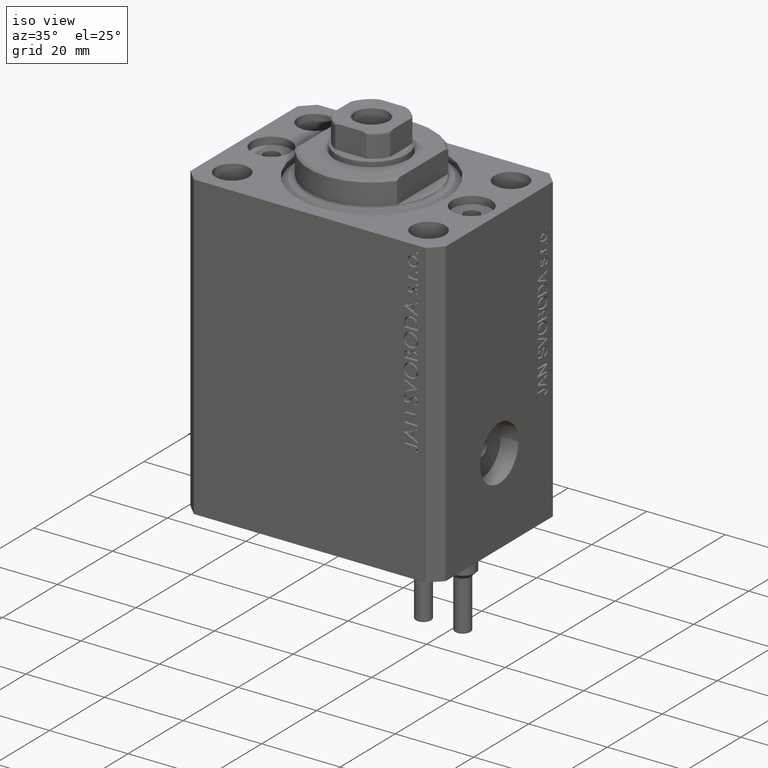
[diagram: clean part render]
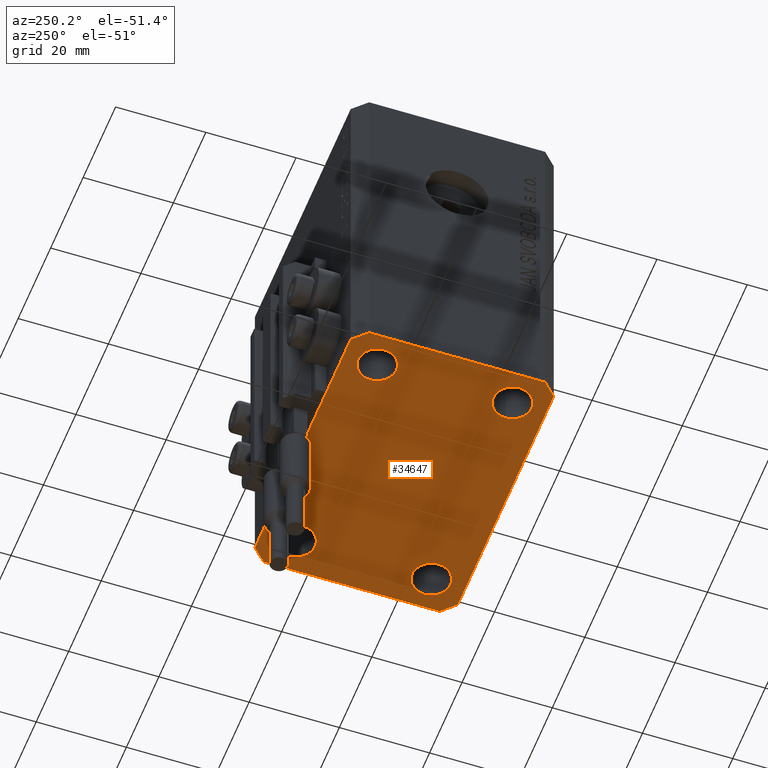
[diagram: tour spotlight — one face highlighted and labeled with its STEP entity id]
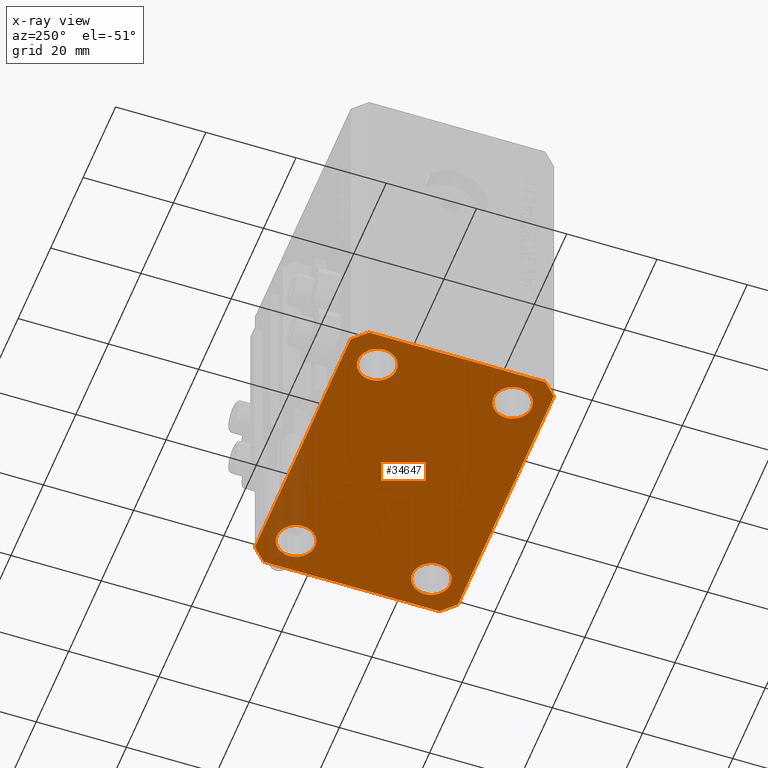
[diagram: x-ray of the same camera — body ghosted, this tour face saturated]
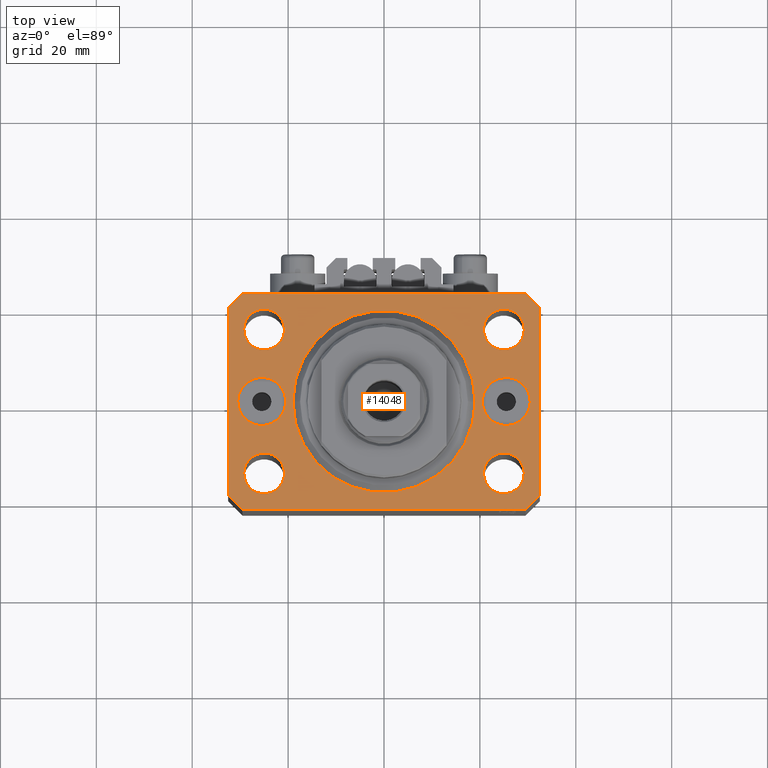
[diagram: tour spotlight — one face highlighted and labeled with its STEP entity id]
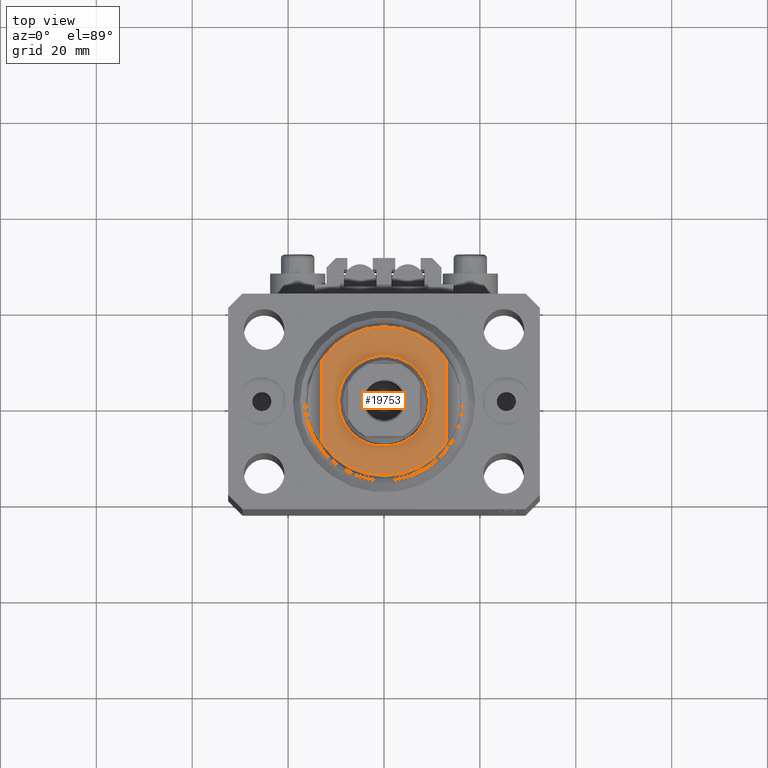
[diagram: tour spotlight — one face highlighted and labeled with its STEP entity id]
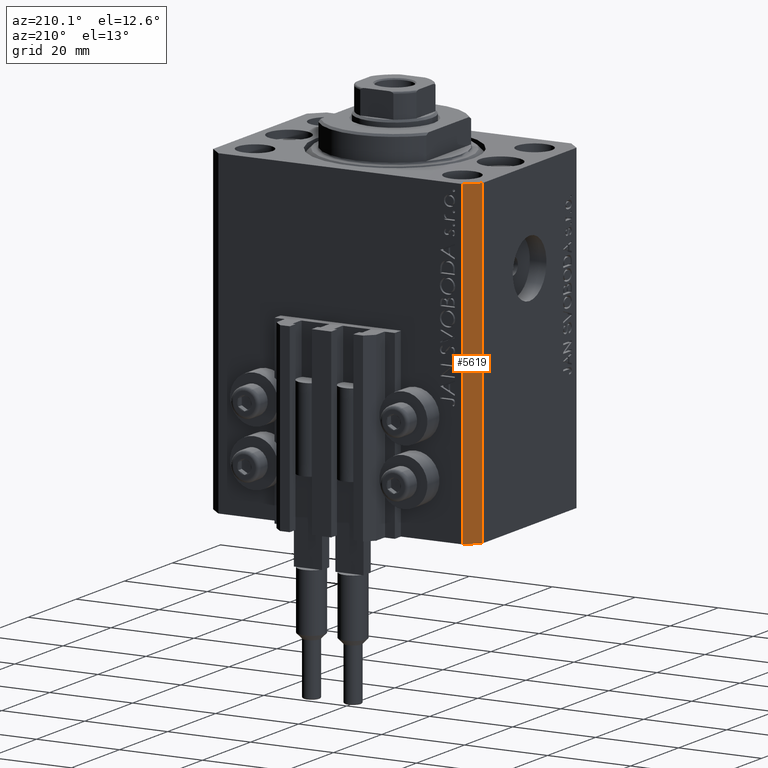
[diagram: tour spotlight — one face highlighted and labeled with its STEP entity id]
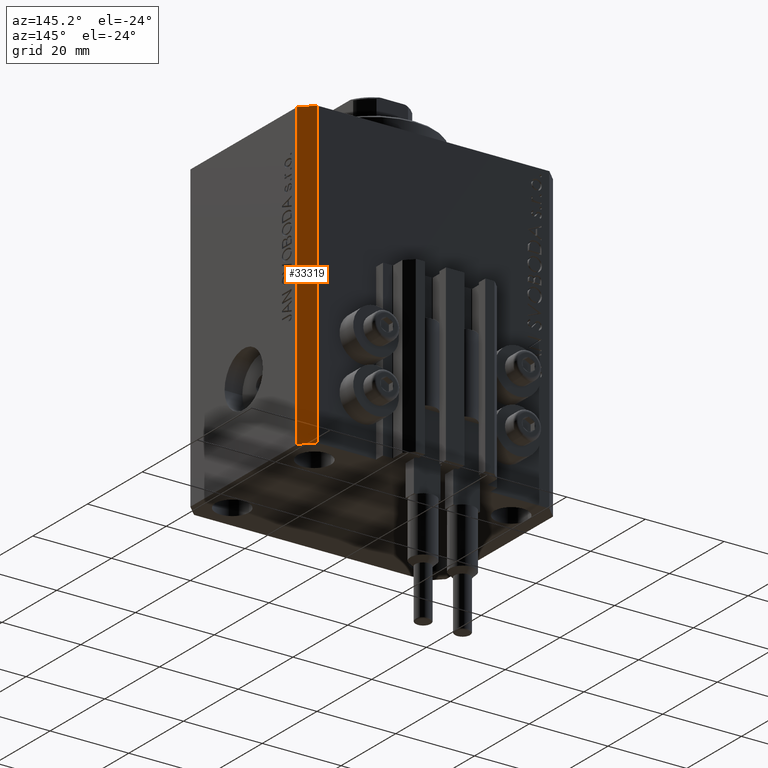
[diagram: tour spotlight — one face highlighted and labeled with its STEP entity id]
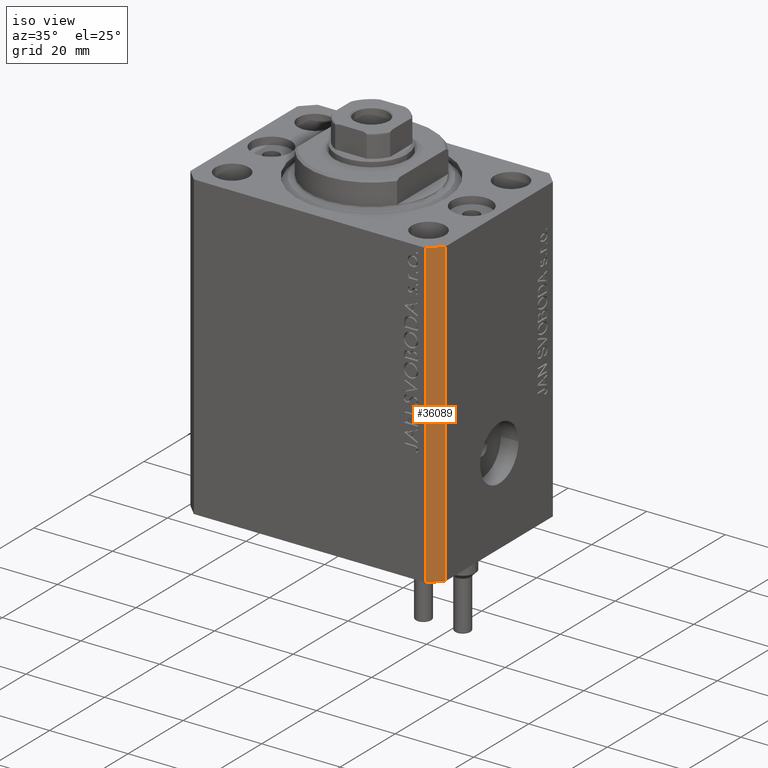
[diagram: tour spotlight — one face highlighted and labeled with its STEP entity id]
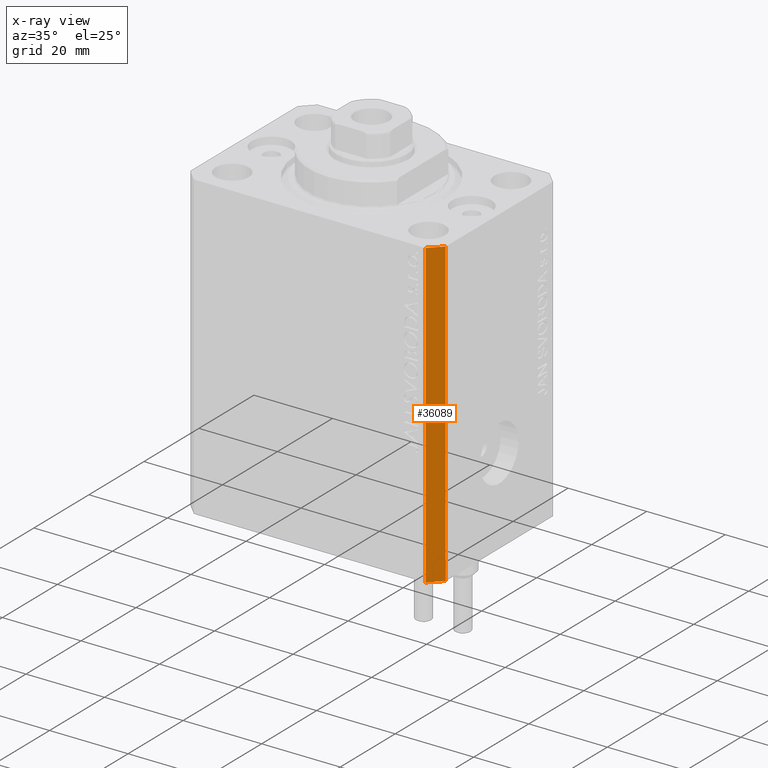
[diagram: x-ray of the same camera — body ghosted, this tour face saturated]
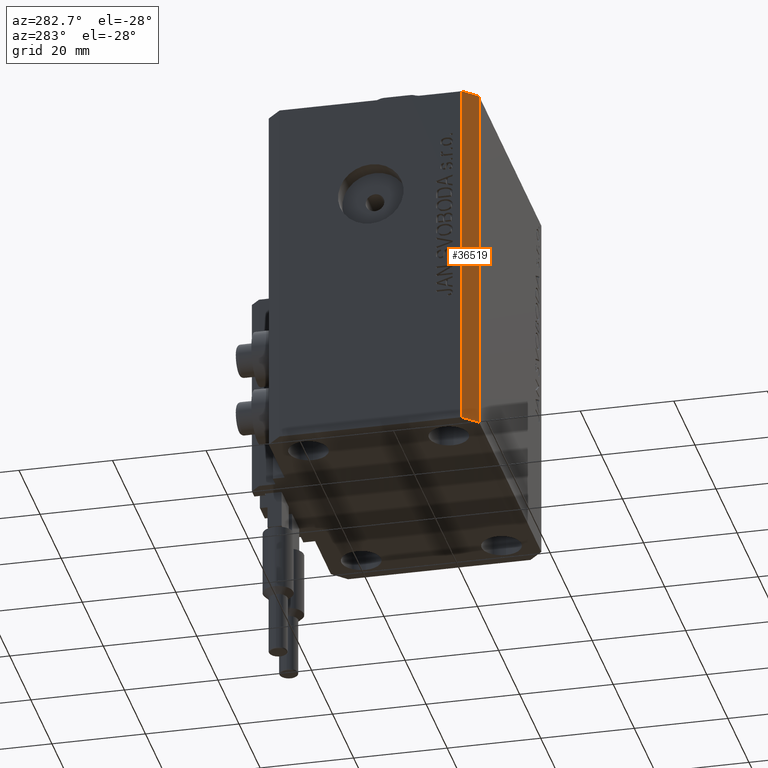
[diagram: tour spotlight — one face highlighted and labeled with its STEP entity id]
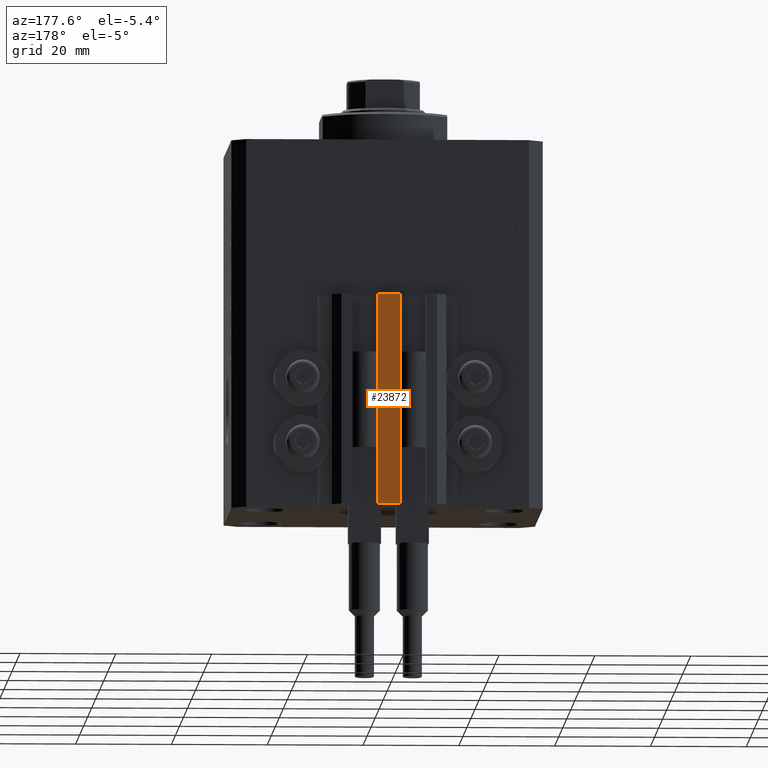
[diagram: tour spotlight — one face highlighted and labeled with its STEP entity id]
A machine part: a face-by-face anatomy tour. The part has 1086 B-rep faces; the first image is the clean iso view, then the 8 largest visible faces are spotlighted one at a time (largest first), each with its STEP entity span.

Face 1 — auxiliary view, entity #34647. An x-ray twin of the same camera follows (body ghosted, this face saturated) — the face is partly hidden behind the body. In plain terms, the highlighted planar face has unit normal (0, 0, 1).
Definition (entity closure, byte-faithful):
#201 = CARTESIAN_POINT ( 'NONE',  ( -29.25000000004036593, -15.00000000000000355, -77.00000000000000000 ) ) ;
#227 = ORIENTED_EDGE ( 'NONE', *, *, #7958, .F. ) ;
#371 = CARTESIAN_POINT ( 'NONE',  ( -20.74999999997862687, 14.99999999999999645, -77.00000000000000000 ) ) ;
#775 = ORIENTED_EDGE ( 'NONE', *, *, #36419, .F. ) ;
#1052 = EDGE_CURVE ( 'NONE', #1258, #2521, #29757, .T. ) ;
#1258 = VERTEX_POINT ( 'NONE', #38722 ) ;
#1757 = EDGE_CURVE ( 'NONE', #3837, #29228, #36660, .T. ) ;
#1959 = AXIS2_PLACEMENT_3D ( 'NONE', #26564, #15388, #8108 ) ;
#2364 = CARTESIAN_POINT ( 'NONE',  ( 29.49999999999707967, 22.49999999999952038, -77.00000000000000000 ) ) ;
#2521 = VERTEX_POINT ( 'NONE', #10734 ) ;
#2629 = AXIS2_PLACEMENT_3D ( 'NONE', #21576, #43655, #43900 ) ;
#2710 = ORIENTED_EDGE ( 'NONE', *, *, #14368, .F. ) ;
#3837 = VERTEX_POINT ( 'NONE', #47033 ) ;
#3840 = CARTESIAN_POINT ( 'NONE',  ( 32.49999999999702993, 19.49999999999945999, -77.00000000000000000 ) ) ;
#3867 = DIRECTION ( 'NONE',  ( 1.000000000000000000, 0.000000000000000000, 0.000000000000000000 ) ) ;
#4780 = EDGE_LOOP ( 'NONE', ( #18419, #37751 ) ) ;
#4862 = DIRECTION ( 'NONE',  ( -0.000000000000000000, -0.000000000000000000, -1.000000000000000000 ) ) ;
#5266 = CARTESIAN_POINT ( 'NONE',  ( -24.99999999999999289, -15.00000000000000355, -77.00000000000000000 ) ) ;
#5289 = CARTESIAN_POINT ( 'NONE',  ( -20.74999999995962341, -15.00000000000000355, -77.00000000000000000 ) ) ;
#5981 = CARTESIAN_POINT ( 'NONE',  ( 32.49999999999702993, 19.49999999999945999, -77.00000000000000000 ) ) ;
#6228 = ORIENTED_EDGE ( 'NONE', *, *, #30761, .F. ) ;
#6427 = VERTEX_POINT ( 'NONE', #43803 ) ;
#6547 = VECTOR ( 'NONE', #20083, 1000.000000000000000 ) ;
#7815 = VERTEX_POINT ( 'NONE', #3840 ) ;
#7958 = EDGE_CURVE ( 'NONE', #28224, #7815, #47263, .T. ) ;
#8108 = DIRECTION ( 'NONE',  ( 1.000000000000000000, 0.000000000000000000, 0.000000000000000000 ) ) ;
#8181 = FACE_BOUND ( 'NONE', #20422, .T. ) ;
#8353 = DIRECTION ( 'NONE',  ( -0.000000000000000000, -0.000000000000000000, -1.000000000000000000 ) ) ;
#8822 = VECTOR ( 'NONE', #17420, 1000.000000000000000 ) ;
#9177 = LINE ( 'NONE', #39496, #45079 ) ;
#9389 = DIRECTION ( 'NONE',  ( -0.000000000000000000, -0.000000000000000000, -1.000000000000000000 ) ) ;
#9636 = AXIS2_PLACEMENT_3D ( 'NONE', #9800, #25339, #10276 ) ;
#9800 = CARTESIAN_POINT ( 'NONE',  ( -24.99999999999999289, -15.00000000000000355, -77.00000000000000000 ) ) ;
#10276 = DIRECTION ( 'NONE',  ( 1.000000000000000000, 0.000000000000000000, 0.000000000000000000 ) ) ;
#10461 = DIRECTION ( 'NONE',  ( 0.7071067811865483499, 0.7071067811865466846, 0.000000000000000000 ) ) ;
#10734 = CARTESIAN_POINT ( 'NONE',  ( 29.49999999999650413, -22.49999999999949196, -77.00000000000000000 ) ) ;
#10757 = DIRECTION ( 'NONE',  ( 1.000000000000000000, 0.000000000000000000, 0.000000000000000000 ) ) ;
#11393 = EDGE_CURVE ( 'NONE', #6427, #25592, #44576, .T. ) ;
#11824 = VECTOR ( 'NONE', #22249, 1000.000000000000000 ) ;
#12363 = ORIENTED_EDGE ( 'NONE', *, *, #21491, .F. ) ;
#12462 = ORIENTED_EDGE ( 'NONE', *, *, #30815, .F. ) ;
#12465 = CARTESIAN_POINT ( 'NONE',  ( 24.99999999999999289, -15.00000000000000355, -77.00000000000000000 ) ) ;
#12590 = CARTESIAN_POINT ( 'NONE',  ( -29.49999999999650413, 22.49999999999949907, -77.00000000000000000 ) ) ;
#13668 = CARTESIAN_POINT ( 'NONE',  ( -32.49999999999650413, -19.49999999999949907, -77.00000000000000000 ) ) ;
#14091 = DIRECTION ( 'NONE',  ( 0.000000000000000000, 0.000000000000000000, 1.000000000000000000 ) ) ;
#14348 = ORIENTED_EDGE ( 'NONE', *, *, #25301, .F. ) ;
#14368 = EDGE_CURVE ( 'NONE', #36918, #16756, #36223, .T. ) ;
#14688 = VECTOR ( 'NONE', #10461, 1000.000000000000000 ) ;
#15388 = DIRECTION ( 'NONE',  ( -0.000000000000000000, -0.000000000000000000, -1.000000000000000000 ) ) ;
#15724 = AXIS2_PLACEMENT_3D ( 'NONE', #26961, #4862, #38600 ) ;
#15865 = VERTEX_POINT ( 'NONE', #201 ) ;
#16756 = VERTEX_POINT ( 'NONE', #12590 ) ;
#17168 = EDGE_LOOP ( 'NONE', ( #14348, #36059 ) ) ;
#17373 = EDGE_CURVE ( 'NONE', #39810, #39284, #39683, .T. ) ;
#17420 = DIRECTION ( 'NONE',  ( 1.334402673828349134E-14, 1.000000000000000000, 0.000000000000000000 ) ) ;
#17543 = DIRECTION ( 'NONE',  ( -1.000000000000000000, -3.528251137580330676E-16, 0.000000000000000000 ) ) ;
#17982 = VERTEX_POINT ( 'NONE', #371 ) ;
#18327 = VECTOR ( 'NONE', #17543, 1000.000000000000000 ) ;
#18419 = ORIENTED_EDGE ( 'NONE', *, *, #19409, .F. ) ;
#19409 = EDGE_CURVE ( 'NONE', #25592, #6427, #28438, .T. ) ;
#20083 = DIRECTION ( 'NONE',  ( -0.7071067811865344721, 0.7071067811865606734, 0.000000000000000000 ) ) ;
#20422 = EDGE_LOOP ( 'NONE', ( #38759, #6228 ) ) ;
#20615 = VECTOR ( 'NONE', #32400, 1000.000000000000000 ) ;
#21187 = CARTESIAN_POINT ( 'NONE',  ( 29.49999999999707967, 22.49999999999952038, -77.00000000000000000 ) ) ;
#21491 = EDGE_CURVE ( 'NONE', #22467, #17982, #33107, .T. ) ;
#21576 = CARTESIAN_POINT ( 'NONE',  ( -25.00000000000000000, 14.99999999999999645, -77.00000000000000000 ) ) ;
#21707 = AXIS2_PLACEMENT_3D ( 'NONE', #5266, #9389, #46047 ) ;
#22056 = EDGE_CURVE ( 'NONE', #15865, #39670, #36421, .T. ) ;
#22098 = DIRECTION ( 'NONE',  ( -0.000000000000000000, -0.000000000000000000, -1.000000000000000000 ) ) ;
#22249 = DIRECTION ( 'NONE',  ( 1.000000000000000000, 1.176083712526788232E-16, 0.000000000000000000 ) ) ;
#22334 = CARTESIAN_POINT ( 'NONE',  ( 25.00000000000000000, 14.99999999999999289, -77.00000000000000000 ) ) ;
#22406 = LINE ( 'NONE', #26278, #40433 ) ;
#22467 = VERTEX_POINT ( 'NONE', #31886 ) ;
#22511 = FACE_BOUND ( 'NONE', #41019, .T. ) ;
#23655 = DIRECTION ( 'NONE',  ( 1.000000000000000000, 0.000000000000000000, 0.000000000000000000 ) ) ;
#23795 = AXIS2_PLACEMENT_3D ( 'NONE', #12465, #8353, #23655 ) ;
#25040 = LINE ( 'NONE', #39828, #14688 ) ;
#25301 = EDGE_CURVE ( 'NONE', #39670, #15865, #45287, .T. ) ;
#25339 = DIRECTION ( 'NONE',  ( -0.000000000000000000, -0.000000000000000000, -1.000000000000000000 ) ) ;
#25592 = VERTEX_POINT ( 'NONE', #31519 ) ;
#25790 = EDGE_CURVE ( 'NONE', #7815, #36918, #27833, .T. ) ;
#26063 = ORIENTED_EDGE ( 'NONE', *, *, #17373, .F. ) ;
#26278 = CARTESIAN_POINT ( 'NONE',  ( -32.49999999999650413, -19.49999999999949907, -77.00000000000000000 ) ) ;
#26564 = CARTESIAN_POINT ( 'NONE',  ( 24.99999999999999289, -15.00000000000000355, -77.00000000000000000 ) ) ;
#26961 = CARTESIAN_POINT ( 'NONE',  ( 25.00000000000000000, 14.99999999999999289, -77.00000000000000000 ) ) ;
#27833 = LINE ( 'NONE', #5981, #6547 ) ;
#28224 = VERTEX_POINT ( 'NONE', #34673 ) ;
#28438 = CIRCLE ( 'NONE', #23795, 4.249999999976314058 ) ;
#29228 = VERTEX_POINT ( 'NONE', #39511 ) ;
#29242 = ORIENTED_EDGE ( 'NONE', *, *, #1052, .F. ) ;
#29414 = AXIS2_PLACEMENT_3D ( 'NONE', #22334, #22098, #3867 ) ;
#29757 = LINE ( 'NONE', #37512, #11824 ) ;
#29794 = FACE_BOUND ( 'NONE', #17168, .T. ) ;
#30024 = DIRECTION ( 'NONE',  ( 1.000000000000000000, 0.000000000000000000, -0.000000000000000000 ) ) ;
#30151 = DIRECTION ( 'NONE',  ( 0.7071067811865474617, -0.7071067811865474617, 0.000000000000000000 ) ) ;
#30166 = CIRCLE ( 'NONE', #29414, 4.249999999957291053 ) ;
#30761 = EDGE_CURVE ( 'NONE', #29228, #3837, #30166, .T. ) ;
#30815 = EDGE_CURVE ( 'NONE', #2521, #28224, #25040, .T. ) ;
#31519 = CARTESIAN_POINT ( 'NONE',  ( 29.24999999997631051, -15.00000000000000355, -77.00000000000000000 ) ) ;
#31886 = CARTESIAN_POINT ( 'NONE',  ( -29.25000000002137668, 14.99999999999999645, -77.00000000000000000 ) ) ;
#32400 = DIRECTION ( 'NONE',  ( 0.000000000000000000, -1.000000000000000000, 0.000000000000000000 ) ) ;
#32691 = CARTESIAN_POINT ( 'NONE',  ( -32.49999999999650413, 19.49999999999949907, -77.00000000000000000 ) ) ;
#33107 = CIRCLE ( 'NONE', #38541, 4.250000000021375790 ) ;
#34149 = PLANE ( 'NONE',  #42722 ) ;
#34647 = ADVANCED_FACE ( 'NONE', ( #29794, #40948, #8181, #22511, #47351 ), #34149, .F. ) ;
#34673 = CARTESIAN_POINT ( 'NONE',  ( 32.49999999999651124, -19.49999999999949196, -77.00000000000000000 ) ) ;
#35142 = DIRECTION ( 'NONE',  ( -0.7071067811865474617, -0.7071067811865474617, 0.000000000000000000 ) ) ;
#36059 = ORIENTED_EDGE ( 'NONE', *, *, #22056, .F. ) ;
#36223 = LINE ( 'NONE', #21187, #18327 ) ;
#36419 = EDGE_CURVE ( 'NONE', #39284, #1258, #22406, .T. ) ;
#36421 = CIRCLE ( 'NONE', #21707, 4.250000000040370374 ) ;
#36493 = CARTESIAN_POINT ( 'NONE',  ( -25.00000000000000000, 14.99999999999999645, -77.00000000000000000 ) ) ;
#36660 = CIRCLE ( 'NONE', #15724, 4.249999999957291053 ) ;
#36918 = VERTEX_POINT ( 'NONE', #2364 ) ;
#37512 = CARTESIAN_POINT ( 'NONE',  ( -29.49999999999650413, -22.49999999999949907, -77.00000000000000000 ) ) ;
#37545 = CARTESIAN_POINT ( 'NONE',  ( 0.000000000000000000, 0.000000000000000000, -77.00000000000000000 ) ) ;
#37751 = ORIENTED_EDGE ( 'NONE', *, *, #11393, .F. ) ;
#37756 = ORIENTED_EDGE ( 'NONE', *, *, #25790, .F. ) ;
#38292 = CIRCLE ( 'NONE', #2629, 4.250000000021375790 ) ;
#38541 = AXIS2_PLACEMENT_3D ( 'NONE', #36493, #44018, #10757 ) ;
#38600 = DIRECTION ( 'NONE',  ( 1.000000000000000000, 0.000000000000000000, 0.000000000000000000 ) ) ;
#38722 = CARTESIAN_POINT ( 'NONE',  ( -29.49999999999650413, -22.49999999999949907, -77.00000000000000000 ) ) ;
#38759 = ORIENTED_EDGE ( 'NONE', *, *, #1757, .F. ) ;
#39258 = CARTESIAN_POINT ( 'NONE',  ( 32.49999999999651124, -19.49999999999949196, -77.00000000000000000 ) ) ;
#39284 = VERTEX_POINT ( 'NONE', #13668 ) ;
#39496 = CARTESIAN_POINT ( 'NONE',  ( -29.49999999999650413, 22.49999999999949907, -77.00000000000000000 ) ) ;
#39511 = CARTESIAN_POINT ( 'NONE',  ( 20.75000000004271072, 14.99999999999999289, -77.00000000000000000 ) ) ;
#39670 = VERTEX_POINT ( 'NONE', #5289 ) ;
#39683 = LINE ( 'NONE', #40168, #20615 ) ;
#39699 = EDGE_CURVE ( 'NONE', #16756, #39810, #9177, .T. ) ;
#39722 = ORIENTED_EDGE ( 'NONE', *, *, #39699, .F. ) ;
#39810 = VERTEX_POINT ( 'NONE', #32691 ) ;
#39828 = CARTESIAN_POINT ( 'NONE',  ( 29.49999999999650413, -22.49999999999949196, -77.00000000000000000 ) ) ;
#40168 = CARTESIAN_POINT ( 'NONE',  ( -32.49999999999650413, 19.49999999999949907, -77.00000000000000000 ) ) ;
#40433 = VECTOR ( 'NONE', #30151, 1000.000000000000114 ) ;
#40948 = FACE_BOUND ( 'NONE', #4780, .T. ) ;
#41019 = EDGE_LOOP ( 'NONE', ( #44811, #12363 ) ) ;
#42531 = EDGE_LOOP ( 'NONE', ( #2710, #37756, #227, #12462, #29242, #775, #26063, #39722 ) ) ;
#42722 = AXIS2_PLACEMENT_3D ( 'NONE', #37545, #14091, #30024 ) ;
#43655 = DIRECTION ( 'NONE',  ( -0.000000000000000000, -0.000000000000000000, -1.000000000000000000 ) ) ;
#43803 = CARTESIAN_POINT ( 'NONE',  ( 20.75000000002367884, -15.00000000000000355, -77.00000000000000000 ) ) ;
#43900 = DIRECTION ( 'NONE',  ( 1.000000000000000000, 0.000000000000000000, 0.000000000000000000 ) ) ;
#44018 = DIRECTION ( 'NONE',  ( -0.000000000000000000, -0.000000000000000000, -1.000000000000000000 ) ) ;
#44576 = CIRCLE ( 'NONE', #1959, 4.249999999976314058 ) ;
#44733 = EDGE_CURVE ( 'NONE', #17982, #22467, #38292, .T. ) ;
#44811 = ORIENTED_EDGE ( 'NONE', *, *, #44733, .F. ) ;
#45079 = VECTOR ( 'NONE', #35142, 1000.000000000000114 ) ;
#45287 = CIRCLE ( 'NONE', #9636, 4.250000000040370374 ) ;
#46047 = DIRECTION ( 'NONE',  ( 1.000000000000000000, 0.000000000000000000, 0.000000000000000000 ) ) ;
#47033 = CARTESIAN_POINT ( 'NONE',  ( 29.24999999995729283, 14.99999999999999289, -77.00000000000000000 ) ) ;
#47263 = LINE ( 'NONE', #39258, #8822 ) ;
#47351 = FACE_OUTER_BOUND ( 'NONE', #42531, .T. ) ;

Face 2 — top view, entity #14048. In plain terms, the highlighted planar face has unit normal (0, 0, 1).
Definition (entity closure, byte-faithful):
#42 = CARTESIAN_POINT ( 'NONE',  ( -25.50000000000000000, 0.000000000000000000, 0.000000000000000000 ) ) ;
#627 = DIRECTION ( 'NONE',  ( 0.000000000000000000, 0.000000000000000000, 1.000000000000000000 ) ) ;
#765 = CARTESIAN_POINT ( 'NONE',  ( -32.49999999999650413, -19.49999999999949907, 0.000000000000000000 ) ) ;
#898 = AXIS2_PLACEMENT_3D ( 'NONE', #39264, #35867, #24949 ) ;
#931 = CARTESIAN_POINT ( 'NONE',  ( 19.00000000000000000, 0.000000000000000000, 0.000000000000000000 ) ) ;
#1134 = VECTOR ( 'NONE', #24746, 1000.000000000000000 ) ;
#1810 = DIRECTION ( 'NONE',  ( 1.000000000000000000, 0.000000000000000000, -0.000000000000000000 ) ) ;
#2121 = ORIENTED_EDGE ( 'NONE', *, *, #30723, .T. ) ;
#2166 = EDGE_LOOP ( 'NONE', ( #32485, #48005 ) ) ;
#2181 = VERTEX_POINT ( 'NONE', #25844 ) ;
#2291 = FACE_BOUND ( 'NONE', #37136, .T. ) ;
#2328 = EDGE_CURVE ( 'NONE', #41079, #8983, #42085, .T. ) ;
#2362 = VERTEX_POINT ( 'NONE', #21436 ) ;
#2826 = EDGE_CURVE ( 'NONE', #2890, #40785, #44408, .T. ) ;
#2890 = VERTEX_POINT ( 'NONE', #4813 ) ;
#2893 = DIRECTION ( 'NONE',  ( 1.000000000000000000, 0.000000000000000000, 0.000000000000000000 ) ) ;
#2926 = EDGE_LOOP ( 'NONE', ( #20816, #36088, #28217, #18312, #3780, #2121, #13595, #43190 ) ) ;
#3058 = VECTOR ( 'NONE', #28435, 1000.000000000000000 ) ;
#3060 = DIRECTION ( 'NONE',  ( 1.000000000000000000, 0.000000000000000000, 0.000000000000000000 ) ) ;
#3589 = ORIENTED_EDGE ( 'NONE', *, *, #22124, .F. ) ;
#3636 = CARTESIAN_POINT ( 'NONE',  ( -25.00000000000000000, 14.99999999999999645, 0.000000000000000000 ) ) ;
#3744 = EDGE_CURVE ( 'NONE', #8983, #41079, #43587, .T. ) ;
#3780 = ORIENTED_EDGE ( 'NONE', *, *, #18011, .T. ) ;
#3833 = EDGE_CURVE ( 'NONE', #29913, #2362, #45098, .T. ) ;
#4286 = CARTESIAN_POINT ( 'NONE',  ( 25.00000000000000000, 14.99999999999999289, 0.000000000000000000 ) ) ;
#4670 = EDGE_CURVE ( 'NONE', #28152, #21829, #8949, .T. ) ;
#4813 = CARTESIAN_POINT ( 'NONE',  ( 29.24999999995729283, 14.99999999999999289, 0.000000000000000000 ) ) ;
#5183 = CARTESIAN_POINT ( 'NONE',  ( -29.49999999999650413, 22.49999999999949907, 0.000000000000000000 ) ) ;
#5283 = VERTEX_POINT ( 'NONE', #5183 ) ;
#5448 = DIRECTION ( 'NONE',  ( 0.000000000000000000, 0.000000000000000000, 1.000000000000000000 ) ) ;
#5537 = AXIS2_PLACEMENT_3D ( 'NONE', #28882, #29353, #14303 ) ;
#5568 = LINE ( 'NONE', #46835, #1134 ) ;
#5994 = EDGE_CURVE ( 'NONE', #9517, #36520, #37559, .T. ) ;
#6129 = CIRCLE ( 'NONE', #12324, 4.249999999976314058 ) ;
#6462 = EDGE_LOOP ( 'NONE', ( #44702, #3589 ) ) ;
#6681 = DIRECTION ( 'NONE',  ( 0.000000000000000000, 0.000000000000000000, 1.000000000000000000 ) ) ;
#6791 = CARTESIAN_POINT ( 'NONE',  ( -29.49999999999650413, -22.49999999999949907, 0.000000000000000000 ) ) ;
#7411 = CARTESIAN_POINT ( 'NONE',  ( -24.99999999999999289, -15.00000000000000355, 0.000000000000000000 ) ) ;
#7611 = CARTESIAN_POINT ( 'NONE',  ( -25.50000000000000000, 0.000000000000000000, 0.000000000000000000 ) ) ;
#7638 = VERTEX_POINT ( 'NONE', #6791 ) ;
#7800 = CARTESIAN_POINT ( 'NONE',  ( -29.25000000002137668, 14.99999999999999645, 0.000000000000000000 ) ) ;
#8089 = VECTOR ( 'NONE', #46691, 1000.000000000000114 ) ;
#8423 = AXIS2_PLACEMENT_3D ( 'NONE', #31773, #39539, #24512 ) ;
#8605 = FACE_OUTER_BOUND ( 'NONE', #2926, .T. ) ;
#8751 = AXIS2_PLACEMENT_3D ( 'NONE', #46193, #12938, #35743 ) ;
#8949 = LINE ( 'NONE', #23515, #34286 ) ;
#8983 = VERTEX_POINT ( 'NONE', #23290 ) ;
#9073 = CARTESIAN_POINT ( 'NONE',  ( 20.49999999999665690, 6.123233995740857512E-16, 0.000000000000000000 ) ) ;
#9088 = CARTESIAN_POINT ( 'NONE',  ( -32.49999999999650413, -19.49999999999949907, 0.000000000000000000 ) ) ;
#9092 = CARTESIAN_POINT ( 'NONE',  ( 29.49999999999650413, -22.49999999999949196, 0.000000000000000000 ) ) ;
#9517 = VERTEX_POINT ( 'NONE', #14861 ) ;
#11077 = EDGE_CURVE ( 'NONE', #21655, #46710, #17464, .T. ) ;
#11221 = DIRECTION ( 'NONE',  ( 1.000000000000000000, 0.000000000000000000, 0.000000000000000000 ) ) ;
#12284 = EDGE_CURVE ( 'NONE', #46710, #21655, #12833, .T. ) ;
#12324 = AXIS2_PLACEMENT_3D ( 'NONE', #21795, #47759, #35882 ) ;
#12564 = DIRECTION ( 'NONE',  ( -0.7071067811865344721, 0.7071067811865606734, 0.000000000000000000 ) ) ;
#12833 = CIRCLE ( 'NONE', #28335, 4.250000000021375790 ) ;
#12938 = DIRECTION ( 'NONE',  ( 0.000000000000000000, -0.000000000000000000, -1.000000000000000000 ) ) ;
#13048 = CARTESIAN_POINT ( 'NONE',  ( 32.49999999999702993, 19.49999999999945999, 0.000000000000000000 ) ) ;
#13053 = DIRECTION ( 'NONE',  ( 0.000000000000000000, 0.000000000000000000, 1.000000000000000000 ) ) ;
#13595 = ORIENTED_EDGE ( 'NONE', *, *, #4670, .T. ) ;
#13637 = AXIS2_PLACEMENT_3D ( 'NONE', #38702, #5448, #1810 ) ;
#13640 = VERTEX_POINT ( 'NONE', #31714 ) ;
#13757 = ORIENTED_EDGE ( 'NONE', *, *, #11077, .F. ) ;
#13826 = CIRCLE ( 'NONE', #40949, 4.250000000040370374 ) ;
#14048 = ADVANCED_FACE ( 'NONE', ( #8605, #2291, #23427, #27303, #45991, #35064, #38230, #42352 ), #42588, .T. ) ;
#14198 = DIRECTION ( 'NONE',  ( 1.000000000000000000, 0.000000000000000000, 0.000000000000000000 ) ) ;
#14303 = DIRECTION ( 'NONE',  ( 1.000000000000000000, 0.000000000000000000, 0.000000000000000000 ) ) ;
#14708 = AXIS2_PLACEMENT_3D ( 'NONE', #7411, #47721, #3060 ) ;
#14861 = CARTESIAN_POINT ( 'NONE',  ( -32.49999999999650413, 19.49999999999949907, 0.000000000000000000 ) ) ;
#15084 = EDGE_CURVE ( 'NONE', #46003, #25595, #17566, .T. ) ;
#15201 = LINE ( 'NONE', #30006, #41546 ) ;
#15453 = DIRECTION ( 'NONE',  ( 1.000000000000000000, 0.000000000000000000, 0.000000000000000000 ) ) ;
#15537 = ORIENTED_EDGE ( 'NONE', *, *, #3744, .T. ) ;
#16277 = ORIENTED_EDGE ( 'NONE', *, *, #2826, .F. ) ;
#16417 = CARTESIAN_POINT ( 'NONE',  ( 20.75000000004271072, 14.99999999999999289, 0.000000000000000000 ) ) ;
#16464 = CARTESIAN_POINT ( 'NONE',  ( 0.000000000000000000, 0.000000000000000000, 0.000000000000000000 ) ) ;
#17464 = CIRCLE ( 'NONE', #19782, 4.250000000021375790 ) ;
#17566 = CIRCLE ( 'NONE', #18366, 5.000000000003342215 ) ;
#18011 = EDGE_CURVE ( 'NONE', #7638, #45269, #15201, .T. ) ;
#18155 = DIRECTION ( 'NONE',  ( 1.000000000000000000, 1.176083712526788232E-16, 0.000000000000000000 ) ) ;
#18312 = ORIENTED_EDGE ( 'NONE', *, *, #47804, .T. ) ;
#18366 = AXIS2_PLACEMENT_3D ( 'NONE', #7611, #6681, #14198 ) ;
#18384 = EDGE_CURVE ( 'NONE', #5283, #9517, #20959, .T. ) ;
#18676 = CARTESIAN_POINT ( 'NONE',  ( 25.00000000000000000, 14.99999999999999289, 0.000000000000000000 ) ) ;
#19092 = CARTESIAN_POINT ( 'NONE',  ( -29.25000000004036593, -15.00000000000000355, 0.000000000000000000 ) ) ;
#19782 = AXIS2_PLACEMENT_3D ( 'NONE', #36624, #32496, #2893 ) ;
#19878 = VECTOR ( 'NONE', #42318, 1000.000000000000114 ) ;
#20235 = DIRECTION ( 'NONE',  ( 0.000000000000000000, 0.000000000000000000, 1.000000000000000000 ) ) ;
#20816 = ORIENTED_EDGE ( 'NONE', *, *, #46895, .T. ) ;
#20959 = LINE ( 'NONE', #27989, #19878 ) ;
#21436 = CARTESIAN_POINT ( 'NONE',  ( -19.00000000000000000, 2.326828918379970970E-15, 0.000000000000000000 ) ) ;
#21632 = DIRECTION ( 'NONE',  ( 1.000000000000000000, 0.000000000000000000, 0.000000000000000000 ) ) ;
#21655 = VERTEX_POINT ( 'NONE', #7800 ) ;
#21673 = CIRCLE ( 'NONE', #37128, 4.249999999957291053 ) ;
#21795 = CARTESIAN_POINT ( 'NONE',  ( 24.99999999999999289, -15.00000000000000355, 0.000000000000000000 ) ) ;
#21829 = VERTEX_POINT ( 'NONE', #35708 ) ;
#21850 = DIRECTION ( 'NONE',  ( 0.000000000000000000, 0.000000000000000000, 1.000000000000000000 ) ) ;
#22124 = EDGE_CURVE ( 'NONE', #43149, #13640, #35653, .T. ) ;
#23009 = ORIENTED_EDGE ( 'NONE', *, *, #27753, .F. ) ;
#23061 = CARTESIAN_POINT ( 'NONE',  ( -30.50000000000333955, 6.123233995740857512E-16, 0.000000000000000000 ) ) ;
#23290 = CARTESIAN_POINT ( 'NONE',  ( 30.50000000000333955, 0.000000000000000000, 0.000000000000000000 ) ) ;
#23427 = FACE_BOUND ( 'NONE', #47809, .T. ) ;
#23493 = DIRECTION ( 'NONE',  ( 0.000000000000000000, -1.000000000000000000, 0.000000000000000000 ) ) ;
#23495 = AXIS2_PLACEMENT_3D ( 'NONE', #18676, #21850, #44638 ) ;
#23515 = CARTESIAN_POINT ( 'NONE',  ( 32.49999999999651124, -19.49999999999949196, 0.000000000000000000 ) ) ;
#23752 = EDGE_LOOP ( 'NONE', ( #29289, #38774 ) ) ;
#24512 = DIRECTION ( 'NONE',  ( 1.000000000000000000, 0.000000000000000000, 0.000000000000000000 ) ) ;
#24724 = CIRCLE ( 'NONE', #8423, 19.00000000000000000 ) ;
#24746 = DIRECTION ( 'NONE',  ( -1.000000000000000000, -3.528251137580330676E-16, 0.000000000000000000 ) ) ;
#24949 = DIRECTION ( 'NONE',  ( 1.000000000000000000, 0.000000000000000000, 0.000000000000000000 ) ) ;
#25595 = VERTEX_POINT ( 'NONE', #39051 ) ;
#25812 = DIRECTION ( 'NONE',  ( 0.000000000000000000, 0.000000000000000000, 1.000000000000000000 ) ) ;
#25844 = CARTESIAN_POINT ( 'NONE',  ( 20.75000000002367884, -15.00000000000000355, 0.000000000000000000 ) ) ;
#26889 = ORIENTED_EDGE ( 'NONE', *, *, #30247, .F. ) ;
#27264 = CIRCLE ( 'NONE', #5537, 4.249999999976314058 ) ;
#27303 = FACE_BOUND ( 'NONE', #2166, .T. ) ;
#27753 = EDGE_CURVE ( 'NONE', #2362, #29913, #24724, .T. ) ;
#27770 = LINE ( 'NONE', #9088, #8089 ) ;
#27989 = CARTESIAN_POINT ( 'NONE',  ( -29.49999999999650413, 22.49999999999949907, 0.000000000000000000 ) ) ;
#28152 = VERTEX_POINT ( 'NONE', #46319 ) ;
#28217 = ORIENTED_EDGE ( 'NONE', *, *, #5994, .T. ) ;
#28335 = AXIS2_PLACEMENT_3D ( 'NONE', #3636, #40529, #21632 ) ;
#28435 = DIRECTION ( 'NONE',  ( 0.7071067811865483499, 0.7071067811865466846, 0.000000000000000000 ) ) ;
#28576 = EDGE_CURVE ( 'NONE', #13640, #43149, #13826, .T. ) ;
#28882 = CARTESIAN_POINT ( 'NONE',  ( 24.99999999999999289, -15.00000000000000355, 0.000000000000000000 ) ) ;
#29289 = ORIENTED_EDGE ( 'NONE', *, *, #35445, .F. ) ;
#29346 = EDGE_CURVE ( 'NONE', #2181, #43751, #6129, .T. ) ;
#29353 = DIRECTION ( 'NONE',  ( 0.000000000000000000, 0.000000000000000000, 1.000000000000000000 ) ) ;
#29755 = EDGE_LOOP ( 'NONE', ( #32748, #23009 ) ) ;
#29913 = VERTEX_POINT ( 'NONE', #931 ) ;
#30006 = CARTESIAN_POINT ( 'NONE',  ( -29.49999999999650413, -22.49999999999949907, 0.000000000000000000 ) ) ;
#30247 = EDGE_CURVE ( 'NONE', #40785, #2890, #21673, .T. ) ;
#30723 = EDGE_CURVE ( 'NONE', #45269, #28152, #35706, .T. ) ;
#30817 = ORIENTED_EDGE ( 'NONE', *, *, #2328, .T. ) ;
#31492 = LINE ( 'NONE', #13048, #44314 ) ;
#31576 = CARTESIAN_POINT ( 'NONE',  ( 29.24999999997631051, -15.00000000000000355, 0.000000000000000000 ) ) ;
#31714 = CARTESIAN_POINT ( 'NONE',  ( -20.74999999995962341, -15.00000000000000355, 0.000000000000000000 ) ) ;
#31773 = CARTESIAN_POINT ( 'NONE',  ( 0.000000000000000000, 0.000000000000000000, 0.000000000000000000 ) ) ;
#32485 = ORIENTED_EDGE ( 'NONE', *, *, #39365, .F. ) ;
#32496 = DIRECTION ( 'NONE',  ( 0.000000000000000000, 0.000000000000000000, 1.000000000000000000 ) ) ;
#32748 = ORIENTED_EDGE ( 'NONE', *, *, #3833, .F. ) ;
#33724 = ORIENTED_EDGE ( 'NONE', *, *, #12284, .F. ) ;
#34242 = AXIS2_PLACEMENT_3D ( 'NONE', #16464, #13053, #46548 ) ;
#34286 = VECTOR ( 'NONE', #42191, 1000.000000000000000 ) ;
#35029 = AXIS2_PLACEMENT_3D ( 'NONE', #42, #25812, #11221 ) ;
#35064 = FACE_BOUND ( 'NONE', #29755, .T. ) ;
#35445 = EDGE_CURVE ( 'NONE', #25595, #46003, #39676, .T. ) ;
#35653 = CIRCLE ( 'NONE', #14708, 4.250000000040370374 ) ;
#35706 = LINE ( 'NONE', #39346, #3058 ) ;
#35708 = CARTESIAN_POINT ( 'NONE',  ( 32.49999999999702993, 19.49999999999945999, 0.000000000000000000 ) ) ;
#35743 = DIRECTION ( 'NONE',  ( 1.000000000000000000, 0.000000000000000000, 0.000000000000000000 ) ) ;
#35867 = DIRECTION ( 'NONE',  ( 0.000000000000000000, -0.000000000000000000, -1.000000000000000000 ) ) ;
#35882 = DIRECTION ( 'NONE',  ( 1.000000000000000000, 0.000000000000000000, 0.000000000000000000 ) ) ;
#35898 = EDGE_LOOP ( 'NONE', ( #15537, #30817 ) ) ;
#36088 = ORIENTED_EDGE ( 'NONE', *, *, #18384, .T. ) ;
#36520 = VERTEX_POINT ( 'NONE', #765 ) ;
#36624 = CARTESIAN_POINT ( 'NONE',  ( -25.00000000000000000, 14.99999999999999645, 0.000000000000000000 ) ) ;
#36656 = VECTOR ( 'NONE', #23493, 1000.000000000000000 ) ;
#37128 = AXIS2_PLACEMENT_3D ( 'NONE', #4286, #627, #15453 ) ;
#37136 = EDGE_LOOP ( 'NONE', ( #33724, #13757 ) ) ;
#37559 = LINE ( 'NONE', #41689, #36656 ) ;
#38230 = FACE_BOUND ( 'NONE', #23752, .T. ) ;
#38669 = CARTESIAN_POINT ( 'NONE',  ( -24.99999999999999289, -15.00000000000000355, 0.000000000000000000 ) ) ;
#38702 = CARTESIAN_POINT ( 'NONE',  ( 0.000000000000000000, 0.000000000000000000, 0.000000000000000000 ) ) ;
#38774 = ORIENTED_EDGE ( 'NONE', *, *, #15084, .F. ) ;
#39051 = CARTESIAN_POINT ( 'NONE',  ( -20.49999999999665690, 0.000000000000000000, 0.000000000000000000 ) ) ;
#39264 = CARTESIAN_POINT ( 'NONE',  ( 25.50000000000000000, 0.000000000000000000, 0.000000000000000000 ) ) ;
#39346 = CARTESIAN_POINT ( 'NONE',  ( 29.49999999999650413, -22.49999999999949196, 0.000000000000000000 ) ) ;
#39365 = EDGE_CURVE ( 'NONE', #43751, #2181, #27264, .T. ) ;
#39539 = DIRECTION ( 'NONE',  ( 0.000000000000000000, 0.000000000000000000, 1.000000000000000000 ) ) ;
#39615 = EDGE_CURVE ( 'NONE', #21829, #44730, #31492, .T. ) ;
#39676 = CIRCLE ( 'NONE', #35029, 5.000000000003342215 ) ;
#40010 = CARTESIAN_POINT ( 'NONE',  ( 29.49999999999707967, 22.49999999999952038, 0.000000000000000000 ) ) ;
#40529 = DIRECTION ( 'NONE',  ( 0.000000000000000000, 0.000000000000000000, 1.000000000000000000 ) ) ;
#40785 = VERTEX_POINT ( 'NONE', #16417 ) ;
#40949 = AXIS2_PLACEMENT_3D ( 'NONE', #38669, #20235, #46195 ) ;
#41079 = VERTEX_POINT ( 'NONE', #9073 ) ;
#41546 = VECTOR ( 'NONE', #18155, 1000.000000000000000 ) ;
#41689 = CARTESIAN_POINT ( 'NONE',  ( -32.49999999999650413, 19.49999999999949907, 0.000000000000000000 ) ) ;
#42085 = CIRCLE ( 'NONE', #8751, 5.000000000003342215 ) ;
#42191 = DIRECTION ( 'NONE',  ( 1.334402673828349134E-14, 1.000000000000000000, 0.000000000000000000 ) ) ;
#42318 = DIRECTION ( 'NONE',  ( -0.7071067811865474617, -0.7071067811865474617, 0.000000000000000000 ) ) ;
#42352 = FACE_BOUND ( 'NONE', #35898, .T. ) ;
#42588 = PLANE ( 'NONE',  #13637 ) ;
#43149 = VERTEX_POINT ( 'NONE', #19092 ) ;
#43190 = ORIENTED_EDGE ( 'NONE', *, *, #39615, .T. ) ;
#43480 = CARTESIAN_POINT ( 'NONE',  ( -20.74999999997862687, 14.99999999999999645, 0.000000000000000000 ) ) ;
#43587 = CIRCLE ( 'NONE', #898, 5.000000000003342215 ) ;
#43751 = VERTEX_POINT ( 'NONE', #31576 ) ;
#44314 = VECTOR ( 'NONE', #12564, 1000.000000000000000 ) ;
#44408 = CIRCLE ( 'NONE', #23495, 4.249999999957291053 ) ;
#44638 = DIRECTION ( 'NONE',  ( 1.000000000000000000, 0.000000000000000000, 0.000000000000000000 ) ) ;
#44702 = ORIENTED_EDGE ( 'NONE', *, *, #28576, .F. ) ;
#44730 = VERTEX_POINT ( 'NONE', #40010 ) ;
#45098 = CIRCLE ( 'NONE', #34242, 19.00000000000000000 ) ;
#45269 = VERTEX_POINT ( 'NONE', #9092 ) ;
#45991 = FACE_BOUND ( 'NONE', #6462, .T. ) ;
#46003 = VERTEX_POINT ( 'NONE', #23061 ) ;
#46193 = CARTESIAN_POINT ( 'NONE',  ( 25.50000000000000000, 0.000000000000000000, 0.000000000000000000 ) ) ;
#46195 = DIRECTION ( 'NONE',  ( 1.000000000000000000, 0.000000000000000000, 0.000000000000000000 ) ) ;
#46319 = CARTESIAN_POINT ( 'NONE',  ( 32.49999999999651124, -19.49999999999949196, 0.000000000000000000 ) ) ;
#46548 = DIRECTION ( 'NONE',  ( 1.000000000000000000, 0.000000000000000000, 0.000000000000000000 ) ) ;
#46691 = DIRECTION ( 'NONE',  ( 0.7071067811865474617, -0.7071067811865474617, 0.000000000000000000 ) ) ;
#46710 = VERTEX_POINT ( 'NONE', #43480 ) ;
#46835 = CARTESIAN_POINT ( 'NONE',  ( 29.49999999999707967, 22.49999999999952038, 0.000000000000000000 ) ) ;
#46895 = EDGE_CURVE ( 'NONE', #44730, #5283, #5568, .T. ) ;
#47721 = DIRECTION ( 'NONE',  ( 0.000000000000000000, 0.000000000000000000, 1.000000000000000000 ) ) ;
#47759 = DIRECTION ( 'NONE',  ( 0.000000000000000000, 0.000000000000000000, 1.000000000000000000 ) ) ;
#47804 = EDGE_CURVE ( 'NONE', #36520, #7638, #27770, .T. ) ;
#47809 = EDGE_LOOP ( 'NONE', ( #16277, #26889 ) ) ;
#48005 = ORIENTED_EDGE ( 'NONE', *, *, #29346, .F. ) ;

Face 3 — top view, entity #19753. In plain terms, the highlighted planar face has unit normal (0, 0, 1).
Definition (entity closure, byte-faithful):
#763 = AXIS2_PLACEMENT_3D ( 'NONE', #8730, #23546, #24931 ) ;
#1056 = AXIS2_PLACEMENT_3D ( 'NONE', #1307, #41845, #16126 ) ;
#1307 = CARTESIAN_POINT ( 'NONE',  ( 0.000000000000000000, 0.000000000000000000, -6.500000000000000000 ) ) ;
#1877 = VERTEX_POINT ( 'NONE', #16524 ) ;
#3487 = EDGE_LOOP ( 'NONE', ( #21119, #35370 ) ) ;
#4603 = CARTESIAN_POINT ( 'NONE',  ( 0.000000000000000000, 0.000000000000000000, -6.500000000000000000 ) ) ;
#4644 = CARTESIAN_POINT ( 'NONE',  ( 0.000000000000000000, 0.000000000000000000, -6.500000000000000000 ) ) ;
#5565 = VERTEX_POINT ( 'NONE', #37650 ) ;
#5947 = AXIS2_PLACEMENT_3D ( 'NONE', #4644, #11922, #29901 ) ;
#6806 = CARTESIAN_POINT ( 'NONE',  ( 13.00000000000000000, -8.440971508067139695, -6.500000000000000000 ) ) ;
#6852 = ORIENTED_EDGE ( 'NONE', *, *, #27779, .F. ) ;
#7008 = CARTESIAN_POINT ( 'NONE',  ( -13.00000000000000000, -43.08131845707602992, -6.500000000000000000 ) ) ;
#8730 = CARTESIAN_POINT ( 'NONE',  ( 0.000000000000000000, 0.000000000000000000, -6.500000000000000000 ) ) ;
#10783 = EDGE_LOOP ( 'NONE', ( #31885, #15127, #11467, #6852 ) ) ;
#11423 = VERTEX_POINT ( 'NONE', #6806 ) ;
#11467 = ORIENTED_EDGE ( 'NONE', *, *, #45225, .T. ) ;
#11922 = DIRECTION ( 'NONE',  ( 0.000000000000000000, 0.000000000000000000, -1.000000000000000000 ) ) ;
#13270 = VERTEX_POINT ( 'NONE', #39410 ) ;
#13999 = CARTESIAN_POINT ( 'NONE',  ( -9.500000000000015987, 0.000000000000000000, -6.500000000000000000 ) ) ;
#15127 = ORIENTED_EDGE ( 'NONE', *, *, #29177, .T. ) ;
#16126 = DIRECTION ( 'NONE',  ( -1.000000000000000000, 0.000000000000000000, 0.000000000000000000 ) ) ;
#16237 = LINE ( 'NONE', #31265, #43327 ) ;
#16524 = CARTESIAN_POINT ( 'NONE',  ( -13.00000000000000000, 8.440971508067139695, -6.500000000000000000 ) ) ;
#16974 = DIRECTION ( 'NONE',  ( -1.000000000000000000, 0.000000000000000000, 0.000000000000000000 ) ) ;
#17784 = VERTEX_POINT ( 'NONE', #30543 ) ;
#17860 = CIRCLE ( 'NONE', #27932, 9.500000000000015987 ) ;
#18421 = DIRECTION ( 'NONE',  ( -0.000000000000000000, -1.000000000000000000, -0.000000000000000000 ) ) ;
#19753 = ADVANCED_FACE ( 'NONE', ( #37905, #23594 ), #45194, .T. ) ;
#21119 = ORIENTED_EDGE ( 'NONE', *, *, #23014, .T. ) ;
#22007 = CIRCLE ( 'NONE', #1056, 15.50000000000003730 ) ;
#22114 = DIRECTION ( 'NONE',  ( -0.000000000000000000, -0.000000000000000000, 1.000000000000000000 ) ) ;
#23014 = EDGE_CURVE ( 'NONE', #39916, #5565, #34922, .T. ) ;
#23156 = VECTOR ( 'NONE', #18421, 1000.000000000000000 ) ;
#23546 = DIRECTION ( 'NONE',  ( -0.000000000000000000, -0.000000000000000000, 1.000000000000000000 ) ) ;
#23594 = FACE_OUTER_BOUND ( 'NONE', #10783, .T. ) ;
#24931 = DIRECTION ( 'NONE',  ( -1.000000000000000000, 0.000000000000000000, 0.000000000000000000 ) ) ;
#27779 = EDGE_CURVE ( 'NONE', #1877, #13270, #44147, .T. ) ;
#27932 = AXIS2_PLACEMENT_3D ( 'NONE', #4603, #22114, #44905 ) ;
#29177 = EDGE_CURVE ( 'NONE', #17784, #11423, #16237, .T. ) ;
#29901 = DIRECTION ( 'NONE',  ( -1.000000000000000000, 0.000000000000000000, -0.000000000000000000 ) ) ;
#30543 = CARTESIAN_POINT ( 'NONE',  ( 13.00000000000000000, 8.440971508067139695, -6.500000000000000000 ) ) ;
#30999 = AXIS2_PLACEMENT_3D ( 'NONE', #31035, #35414, #16974 ) ;
#31035 = CARTESIAN_POINT ( 'NONE',  ( 0.000000000000000000, 0.000000000000000000, -6.500000000000000000 ) ) ;
#31056 = EDGE_CURVE ( 'NONE', #1877, #17784, #38743, .T. ) ;
#31265 = CARTESIAN_POINT ( 'NONE',  ( 13.00000000000000000, -43.08131845707602992, -6.500000000000000000 ) ) ;
#31885 = ORIENTED_EDGE ( 'NONE', *, *, #31056, .T. ) ;
#33007 = EDGE_CURVE ( 'NONE', #5565, #39916, #17860, .T. ) ;
#34922 = CIRCLE ( 'NONE', #763, 9.500000000000015987 ) ;
#35370 = ORIENTED_EDGE ( 'NONE', *, *, #33007, .T. ) ;
#35414 = DIRECTION ( 'NONE',  ( 0.000000000000000000, 0.000000000000000000, -1.000000000000000000 ) ) ;
#37650 = CARTESIAN_POINT ( 'NONE',  ( 9.500000000000015987, 1.163414459189987457E-15, -6.500000000000000000 ) ) ;
#37905 = FACE_BOUND ( 'NONE', #3487, .T. ) ;
#38559 = DIRECTION ( 'NONE',  ( 0.000000000000000000, -1.000000000000000000, -0.000000000000000000 ) ) ;
#38743 = CIRCLE ( 'NONE', #30999, 15.50000000000003730 ) ;
#39410 = CARTESIAN_POINT ( 'NONE',  ( -13.00000000000000000, -8.440971508067139695, -6.500000000000000000 ) ) ;
#39916 = VERTEX_POINT ( 'NONE', #13999 ) ;
#41845 = DIRECTION ( 'NONE',  ( 0.000000000000000000, 0.000000000000000000, -1.000000000000000000 ) ) ;
#43327 = VECTOR ( 'NONE', #38559, 1000.000000000000000 ) ;
#44147 = LINE ( 'NONE', #7008, #23156 ) ;
#44905 = DIRECTION ( 'NONE',  ( -1.000000000000000000, 0.000000000000000000, 0.000000000000000000 ) ) ;
#45194 = PLANE ( 'NONE',  #5947 ) ;
#45225 = EDGE_CURVE ( 'NONE', #11423, #13270, #22007, .T. ) ;

Face 4 — auxiliary view, entity #5619. In plain terms, the highlighted planar face has unit normal (-0.7071, 0.7071, 0).
Definition (entity closure, byte-faithful):
#3515 = VECTOR ( 'NONE', #7499, 1000.000000000000000 ) ;
#5183 = CARTESIAN_POINT ( 'NONE',  ( -29.49999999999650413, 22.49999999999949907, 0.000000000000000000 ) ) ;
#5283 = VERTEX_POINT ( 'NONE', #5183 ) ;
#5619 = ADVANCED_FACE ( 'NONE', ( #24307 ), #35464, .T. ) ;
#7499 = DIRECTION ( 'NONE',  ( 0.000000000000000000, 0.000000000000000000, 1.000000000000000000 ) ) ;
#8587 = DIRECTION ( 'NONE',  ( 0.000000000000000000, 0.000000000000000000, 1.000000000000000000 ) ) ;
#9177 = LINE ( 'NONE', #39496, #45079 ) ;
#9252 = DIRECTION ( 'NONE',  ( -0.7071067811865475727, 0.7071067811865475727, 0.000000000000000000 ) ) ;
#9517 = VERTEX_POINT ( 'NONE', #14861 ) ;
#11359 = EDGE_CURVE ( 'NONE', #16756, #5283, #33839, .T. ) ;
#11553 = EDGE_CURVE ( 'NONE', #39810, #9517, #25968, .T. ) ;
#12096 = CARTESIAN_POINT ( 'NONE',  ( -32.49999999999650413, 19.49999999999949907, -77.00000000000000000 ) ) ;
#12590 = CARTESIAN_POINT ( 'NONE',  ( -29.49999999999650413, 22.49999999999949907, -77.00000000000000000 ) ) ;
#14861 = CARTESIAN_POINT ( 'NONE',  ( -32.49999999999650413, 19.49999999999949907, 0.000000000000000000 ) ) ;
#15721 = AXIS2_PLACEMENT_3D ( 'NONE', #16791, #9252, #17262 ) ;
#16756 = VERTEX_POINT ( 'NONE', #12590 ) ;
#16791 = CARTESIAN_POINT ( 'NONE',  ( -29.49999999999650413, 22.49999999999949907, -77.00000000000000000 ) ) ;
#17262 = DIRECTION ( 'NONE',  ( -0.7071067811865474617, -0.7071067811865474617, 0.000000000000000000 ) ) ;
#18384 = EDGE_CURVE ( 'NONE', #5283, #9517, #20959, .T. ) ;
#19878 = VECTOR ( 'NONE', #42318, 1000.000000000000114 ) ;
#20959 = LINE ( 'NONE', #27989, #19878 ) ;
#23739 = ORIENTED_EDGE ( 'NONE', *, *, #11359, .F. ) ;
#24307 = FACE_OUTER_BOUND ( 'NONE', #41136, .T. ) ;
#25762 = ORIENTED_EDGE ( 'NONE', *, *, #11553, .T. ) ;
#25968 = LINE ( 'NONE', #12096, #3515 ) ;
#27989 = CARTESIAN_POINT ( 'NONE',  ( -29.49999999999650413, 22.49999999999949907, 0.000000000000000000 ) ) ;
#30719 = ORIENTED_EDGE ( 'NONE', *, *, #18384, .F. ) ;
#32691 = CARTESIAN_POINT ( 'NONE',  ( -32.49999999999650413, 19.49999999999949907, -77.00000000000000000 ) ) ;
#33839 = LINE ( 'NONE', #38447, #46137 ) ;
#35142 = DIRECTION ( 'NONE',  ( -0.7071067811865474617, -0.7071067811865474617, 0.000000000000000000 ) ) ;
#35464 = PLANE ( 'NONE',  #15721 ) ;
#38447 = CARTESIAN_POINT ( 'NONE',  ( -29.49999999999650413, 22.49999999999949907, -77.00000000000000000 ) ) ;
#39496 = CARTESIAN_POINT ( 'NONE',  ( -29.49999999999650413, 22.49999999999949907, -77.00000000000000000 ) ) ;
#39699 = EDGE_CURVE ( 'NONE', #16756, #39810, #9177, .T. ) ;
#39810 = VERTEX_POINT ( 'NONE', #32691 ) ;
#41136 = EDGE_LOOP ( 'NONE', ( #30719, #23739, #47265, #25762 ) ) ;
#42318 = DIRECTION ( 'NONE',  ( -0.7071067811865474617, -0.7071067811865474617, 0.000000000000000000 ) ) ;
#45079 = VECTOR ( 'NONE', #35142, 1000.000000000000114 ) ;
#46137 = VECTOR ( 'NONE', #8587, 1000.000000000000000 ) ;
#47265 = ORIENTED_EDGE ( 'NONE', *, *, #39699, .T. ) ;

Face 5 — auxiliary view, entity #33319. In plain terms, the highlighted planar face has unit normal (0.7071, 0.7071, 0).
Definition (entity closure, byte-faithful):
#2364 = CARTESIAN_POINT ( 'NONE',  ( 29.49999999999707967, 22.49999999999952038, -77.00000000000000000 ) ) ;
#3840 = CARTESIAN_POINT ( 'NONE',  ( 32.49999999999702993, 19.49999999999945999, -77.00000000000000000 ) ) ;
#5380 = EDGE_CURVE ( 'NONE', #7815, #21829, #21679, .T. ) ;
#5981 = CARTESIAN_POINT ( 'NONE',  ( 32.49999999999702993, 19.49999999999945999, -77.00000000000000000 ) ) ;
#6547 = VECTOR ( 'NONE', #20083, 1000.000000000000000 ) ;
#7815 = VERTEX_POINT ( 'NONE', #3840 ) ;
#10406 = LINE ( 'NONE', #40248, #21292 ) ;
#11109 = ORIENTED_EDGE ( 'NONE', *, *, #39615, .F. ) ;
#11530 = DIRECTION ( 'NONE',  ( -0.7071067811865344721, 0.7071067811865606734, 0.000000000000000000 ) ) ;
#12564 = DIRECTION ( 'NONE',  ( -0.7071067811865344721, 0.7071067811865606734, 0.000000000000000000 ) ) ;
#12621 = ORIENTED_EDGE ( 'NONE', *, *, #25670, .T. ) ;
#13048 = CARTESIAN_POINT ( 'NONE',  ( 32.49999999999702993, 19.49999999999945999, 0.000000000000000000 ) ) ;
#16154 = CARTESIAN_POINT ( 'NONE',  ( 32.49999999999702993, 19.49999999999945999, -77.00000000000000000 ) ) ;
#20083 = DIRECTION ( 'NONE',  ( -0.7071067811865344721, 0.7071067811865606734, 0.000000000000000000 ) ) ;
#20217 = AXIS2_PLACEMENT_3D ( 'NONE', #16154, #30708, #11530 ) ;
#21171 = VECTOR ( 'NONE', #47874, 1000.000000000000000 ) ;
#21292 = VECTOR ( 'NONE', #22044, 1000.000000000000000 ) ;
#21679 = LINE ( 'NONE', #47639, #21171 ) ;
#21829 = VERTEX_POINT ( 'NONE', #35708 ) ;
#22044 = DIRECTION ( 'NONE',  ( 0.000000000000000000, 0.000000000000000000, 1.000000000000000000 ) ) ;
#23200 = FACE_OUTER_BOUND ( 'NONE', #34036, .T. ) ;
#25670 = EDGE_CURVE ( 'NONE', #36918, #44730, #10406, .T. ) ;
#25790 = EDGE_CURVE ( 'NONE', #7815, #36918, #27833, .T. ) ;
#27833 = LINE ( 'NONE', #5981, #6547 ) ;
#30708 = DIRECTION ( 'NONE',  ( 0.7071067811865606734, 0.7071067811865344721, -0.000000000000000000 ) ) ;
#30942 = PLANE ( 'NONE',  #20217 ) ;
#31492 = LINE ( 'NONE', #13048, #44314 ) ;
#33319 = ADVANCED_FACE ( 'NONE', ( #23200 ), #30942, .T. ) ;
#34036 = EDGE_LOOP ( 'NONE', ( #11109, #45886, #34951, #12621 ) ) ;
#34951 = ORIENTED_EDGE ( 'NONE', *, *, #25790, .T. ) ;
#35708 = CARTESIAN_POINT ( 'NONE',  ( 32.49999999999702993, 19.49999999999945999, 0.000000000000000000 ) ) ;
#36918 = VERTEX_POINT ( 'NONE', #2364 ) ;
#39615 = EDGE_CURVE ( 'NONE', #21829, #44730, #31492, .T. ) ;
#40010 = CARTESIAN_POINT ( 'NONE',  ( 29.49999999999707967, 22.49999999999952038, 0.000000000000000000 ) ) ;
#40248 = CARTESIAN_POINT ( 'NONE',  ( 29.49999999999707967, 22.49999999999952038, -77.00000000000000000 ) ) ;
#44314 = VECTOR ( 'NONE', #12564, 1000.000000000000000 ) ;
#44730 = VERTEX_POINT ( 'NONE', #40010 ) ;
#45886 = ORIENTED_EDGE ( 'NONE', *, *, #5380, .F. ) ;
#47639 = CARTESIAN_POINT ( 'NONE',  ( 32.49999999999702993, 19.49999999999945999, -77.00000000000000000 ) ) ;
#47874 = DIRECTION ( 'NONE',  ( 0.000000000000000000, 0.000000000000000000, 1.000000000000000000 ) ) ;

Face 6 — iso view, entity #36089. An x-ray twin of the same camera follows (body ghosted, this face saturated) — the face is partly hidden behind the body. In plain terms, the highlighted planar face has unit normal (0.7071, -0.7071, 0).
Definition (entity closure, byte-faithful):
#1346 = EDGE_CURVE ( 'NONE', #2521, #45269, #6671, .T. ) ;
#2521 = VERTEX_POINT ( 'NONE', #10734 ) ;
#3058 = VECTOR ( 'NONE', #28435, 1000.000000000000000 ) ;
#6485 = ORIENTED_EDGE ( 'NONE', *, *, #30815, .T. ) ;
#6671 = LINE ( 'NONE', #47209, #46704 ) ;
#9092 = CARTESIAN_POINT ( 'NONE',  ( 29.49999999999650413, -22.49999999999949196, 0.000000000000000000 ) ) ;
#10461 = DIRECTION ( 'NONE',  ( 0.7071067811865483499, 0.7071067811865466846, 0.000000000000000000 ) ) ;
#10713 = ORIENTED_EDGE ( 'NONE', *, *, #30723, .F. ) ;
#10734 = CARTESIAN_POINT ( 'NONE',  ( 29.49999999999650413, -22.49999999999949196, -77.00000000000000000 ) ) ;
#12111 = ORIENTED_EDGE ( 'NONE', *, *, #1346, .F. ) ;
#13086 = DIRECTION ( 'NONE',  ( 0.7071067811865483499, 0.7071067811865466846, 0.000000000000000000 ) ) ;
#14688 = VECTOR ( 'NONE', #10461, 1000.000000000000000 ) ;
#21705 = DIRECTION ( 'NONE',  ( 0.000000000000000000, 0.000000000000000000, 1.000000000000000000 ) ) ;
#21841 = AXIS2_PLACEMENT_3D ( 'NONE', #24269, #28385, #13086 ) ;
#21939 = LINE ( 'NONE', #33794, #37540 ) ;
#24269 = CARTESIAN_POINT ( 'NONE',  ( 29.49999999999650413, -22.49999999999949196, -77.00000000000000000 ) ) ;
#24570 = ORIENTED_EDGE ( 'NONE', *, *, #46439, .T. ) ;
#24740 = PLANE ( 'NONE',  #21841 ) ;
#25040 = LINE ( 'NONE', #39828, #14688 ) ;
#28152 = VERTEX_POINT ( 'NONE', #46319 ) ;
#28224 = VERTEX_POINT ( 'NONE', #34673 ) ;
#28385 = DIRECTION ( 'NONE',  ( 0.7071067811865466846, -0.7071067811865483499, 0.000000000000000000 ) ) ;
#28435 = DIRECTION ( 'NONE',  ( 0.7071067811865483499, 0.7071067811865466846, 0.000000000000000000 ) ) ;
#30723 = EDGE_CURVE ( 'NONE', #45269, #28152, #35706, .T. ) ;
#30815 = EDGE_CURVE ( 'NONE', #2521, #28224, #25040, .T. ) ;
#33794 = CARTESIAN_POINT ( 'NONE',  ( 32.49999999999651124, -19.49999999999949196, -77.00000000000000000 ) ) ;
#34673 = CARTESIAN_POINT ( 'NONE',  ( 32.49999999999651124, -19.49999999999949196, -77.00000000000000000 ) ) ;
#34948 = EDGE_LOOP ( 'NONE', ( #10713, #12111, #6485, #24570 ) ) ;
#35706 = LINE ( 'NONE', #39346, #3058 ) ;
#36089 = ADVANCED_FACE ( 'NONE', ( #46581 ), #24740, .T. ) ;
#37540 = VECTOR ( 'NONE', #21705, 1000.000000000000000 ) ;
#39346 = CARTESIAN_POINT ( 'NONE',  ( 29.49999999999650413, -22.49999999999949196, 0.000000000000000000 ) ) ;
#39828 = CARTESIAN_POINT ( 'NONE',  ( 29.49999999999650413, -22.49999999999949196, -77.00000000000000000 ) ) ;
#45269 = VERTEX_POINT ( 'NONE', #9092 ) ;
#46319 = CARTESIAN_POINT ( 'NONE',  ( 32.49999999999651124, -19.49999999999949196, 0.000000000000000000 ) ) ;
#46439 = EDGE_CURVE ( 'NONE', #28224, #28152, #21939, .T. ) ;
#46581 = FACE_OUTER_BOUND ( 'NONE', #34948, .T. ) ;
#46704 = VECTOR ( 'NONE', #46731, 1000.000000000000000 ) ;
#46731 = DIRECTION ( 'NONE',  ( 0.000000000000000000, 0.000000000000000000, 1.000000000000000000 ) ) ;
#47209 = CARTESIAN_POINT ( 'NONE',  ( 29.49999999999650413, -22.49999999999949196, -77.00000000000000000 ) ) ;

Face 7 — auxiliary view, entity #36519. In plain terms, the highlighted planar face has unit normal (-0.7071, -0.7071, 0).
Definition (entity closure, byte-faithful):
#53 = PLANE ( 'NONE',  #24998 ) ;
#765 = CARTESIAN_POINT ( 'NONE',  ( -32.49999999999650413, -19.49999999999949907, 0.000000000000000000 ) ) ;
#1258 = VERTEX_POINT ( 'NONE', #38722 ) ;
#6791 = CARTESIAN_POINT ( 'NONE',  ( -29.49999999999650413, -22.49999999999949907, 0.000000000000000000 ) ) ;
#7638 = VERTEX_POINT ( 'NONE', #6791 ) ;
#8089 = VECTOR ( 'NONE', #46691, 1000.000000000000114 ) ;
#8933 = VECTOR ( 'NONE', #34442, 1000.000000000000000 ) ;
#9088 = CARTESIAN_POINT ( 'NONE',  ( -32.49999999999650413, -19.49999999999949907, 0.000000000000000000 ) ) ;
#9670 = CARTESIAN_POINT ( 'NONE',  ( -32.49999999999650413, -19.49999999999949907, -77.00000000000000000 ) ) ;
#10435 = ORIENTED_EDGE ( 'NONE', *, *, #47804, .F. ) ;
#11554 = DIRECTION ( 'NONE',  ( 0.000000000000000000, 0.000000000000000000, 1.000000000000000000 ) ) ;
#11662 = EDGE_CURVE ( 'NONE', #39284, #36520, #13306, .T. ) ;
#13306 = LINE ( 'NONE', #9670, #8933 ) ;
#13668 = CARTESIAN_POINT ( 'NONE',  ( -32.49999999999650413, -19.49999999999949907, -77.00000000000000000 ) ) ;
#13859 = VECTOR ( 'NONE', #11554, 1000.000000000000000 ) ;
#19234 = FACE_OUTER_BOUND ( 'NONE', #25469, .T. ) ;
#22406 = LINE ( 'NONE', #26278, #40433 ) ;
#22498 = CARTESIAN_POINT ( 'NONE',  ( -29.49999999999650413, -22.49999999999949907, -77.00000000000000000 ) ) ;
#24998 = AXIS2_PLACEMENT_3D ( 'NONE', #44494, #34035, #40841 ) ;
#25469 = EDGE_LOOP ( 'NONE', ( #10435, #37379, #47965, #40664 ) ) ;
#26278 = CARTESIAN_POINT ( 'NONE',  ( -32.49999999999650413, -19.49999999999949907, -77.00000000000000000 ) ) ;
#27770 = LINE ( 'NONE', #9088, #8089 ) ;
#29355 = EDGE_CURVE ( 'NONE', #1258, #7638, #44823, .T. ) ;
#30151 = DIRECTION ( 'NONE',  ( 0.7071067811865474617, -0.7071067811865474617, 0.000000000000000000 ) ) ;
#34035 = DIRECTION ( 'NONE',  ( -0.7071067811865475727, -0.7071067811865475727, 0.000000000000000000 ) ) ;
#34442 = DIRECTION ( 'NONE',  ( 0.000000000000000000, 0.000000000000000000, 1.000000000000000000 ) ) ;
#36419 = EDGE_CURVE ( 'NONE', #39284, #1258, #22406, .T. ) ;
#36519 = ADVANCED_FACE ( 'NONE', ( #19234 ), #53, .T. ) ;
#36520 = VERTEX_POINT ( 'NONE', #765 ) ;
#37379 = ORIENTED_EDGE ( 'NONE', *, *, #11662, .F. ) ;
#38722 = CARTESIAN_POINT ( 'NONE',  ( -29.49999999999650413, -22.49999999999949907, -77.00000000000000000 ) ) ;
#39284 = VERTEX_POINT ( 'NONE', #13668 ) ;
#40433 = VECTOR ( 'NONE', #30151, 1000.000000000000114 ) ;
#40664 = ORIENTED_EDGE ( 'NONE', *, *, #29355, .T. ) ;
#40841 = DIRECTION ( 'NONE',  ( 0.7071067811865474617, -0.7071067811865474617, 0.000000000000000000 ) ) ;
#44494 = CARTESIAN_POINT ( 'NONE',  ( -32.49999999999650413, -19.49999999999949907, -77.00000000000000000 ) ) ;
#44823 = LINE ( 'NONE', #22498, #13859 ) ;
#46691 = DIRECTION ( 'NONE',  ( 0.7071067811865474617, -0.7071067811865474617, 0.000000000000000000 ) ) ;
#47804 = EDGE_CURVE ( 'NONE', #36520, #7638, #27770, .T. ) ;
#47965 = ORIENTED_EDGE ( 'NONE', *, *, #36419, .T. ) ;

Face 8 — auxiliary view, entity #23872. In plain terms, the highlighted planar face has unit normal (0, -1, 0).
Definition (entity closure, byte-faithful):
#968 = VECTOR ( 'NONE', #15267, 1000.000000000000000 ) ;
#1298 = CARTESIAN_POINT ( 'NONE',  ( 2.349999999999999645, 30.49999999999949907, -77.00000000000000000 ) ) ;
#4096 = LINE ( 'NONE', #18916, #968 ) ;
#4551 = DIRECTION ( 'NONE',  ( 0.000000000000000000, -0.000000000000000000, -1.000000000000000000 ) ) ;
#5207 = VERTEX_POINT ( 'NONE', #26310 ) ;
#5796 = EDGE_CURVE ( 'NONE', #7938, #34410, #4096, .T. ) ;
#7938 = VERTEX_POINT ( 'NONE', #34665 ) ;
#8586 = LINE ( 'NONE', #1298, #39880 ) ;
#13166 = VECTOR ( 'NONE', #46949, 1000.000000000000000 ) ;
#13420 = ORIENTED_EDGE ( 'NONE', *, *, #31604, .T. ) ;
#15267 = DIRECTION ( 'NONE',  ( 1.000000000000000000, 0.000000000000000000, 0.000000000000000000 ) ) ;
#16408 = CARTESIAN_POINT ( 'NONE',  ( -2.350000000000003197, 30.49999999999949907, -33.00000000000000000 ) ) ;
#17353 = EDGE_CURVE ( 'NONE', #5207, #42048, #31683, .T. ) ;
#18916 = CARTESIAN_POINT ( 'NONE',  ( -2.350000000000003197, 30.49999999999949907, -77.00000000000000000 ) ) ;
#20940 = ORIENTED_EDGE ( 'NONE', *, *, #5796, .F. ) ;
#23872 = ADVANCED_FACE ( 'NONE', ( #33923 ), #48020, .F. ) ;
#24124 = DIRECTION ( 'NONE',  ( 0.000000000000000000, 0.000000000000000000, 1.000000000000000000 ) ) ;
#25206 = EDGE_CURVE ( 'NONE', #34410, #42048, #8586, .T. ) ;
#25942 = CARTESIAN_POINT ( 'NONE',  ( -2.350000000000003197, 30.49999999999949907, -77.00000000000000000 ) ) ;
#26310 = CARTESIAN_POINT ( 'NONE',  ( -2.350000000000003197, 30.49999999999949907, -33.00000000000000000 ) ) ;
#27305 = ORIENTED_EDGE ( 'NONE', *, *, #25206, .F. ) ;
#31010 = CARTESIAN_POINT ( 'NONE',  ( 2.349999999999999645, 30.49999999999949907, -33.00000000000000000 ) ) ;
#31054 = AXIS2_PLACEMENT_3D ( 'NONE', #25942, #44853, #4551 ) ;
#31091 = CARTESIAN_POINT ( 'NONE',  ( 2.349999999999999645, 30.49999999999949907, -77.00000000000000000 ) ) ;
#31198 = DIRECTION ( 'NONE',  ( 1.000000000000000000, 0.000000000000000000, 0.000000000000000000 ) ) ;
#31604 = EDGE_CURVE ( 'NONE', #7938, #5207, #35779, .T. ) ;
#31683 = LINE ( 'NONE', #16408, #32998 ) ;
#31963 = ORIENTED_EDGE ( 'NONE', *, *, #17353, .T. ) ;
#32125 = CARTESIAN_POINT ( 'NONE',  ( -2.350000000000003197, 30.49999999999949907, -77.00000000000000000 ) ) ;
#32998 = VECTOR ( 'NONE', #31198, 1000.000000000000000 ) ;
#33923 = FACE_OUTER_BOUND ( 'NONE', #45538, .T. ) ;
#34410 = VERTEX_POINT ( 'NONE', #31091 ) ;
#34665 = CARTESIAN_POINT ( 'NONE',  ( -2.350000000000003197, 30.49999999999949907, -77.00000000000000000 ) ) ;
#35779 = LINE ( 'NONE', #32125, #13166 ) ;
#39880 = VECTOR ( 'NONE', #24124, 1000.000000000000000 ) ;
#42048 = VERTEX_POINT ( 'NONE', #31010 ) ;
#44853 = DIRECTION ( 'NONE',  ( 0.000000000000000000, -1.000000000000000000, 0.000000000000000000 ) ) ;
#45538 = EDGE_LOOP ( 'NONE', ( #31963, #27305, #20940, #13420 ) ) ;
#46949 = DIRECTION ( 'NONE',  ( 0.000000000000000000, 0.000000000000000000, 1.000000000000000000 ) ) ;
#48020 = PLANE ( 'NONE',  #31054 ) ;